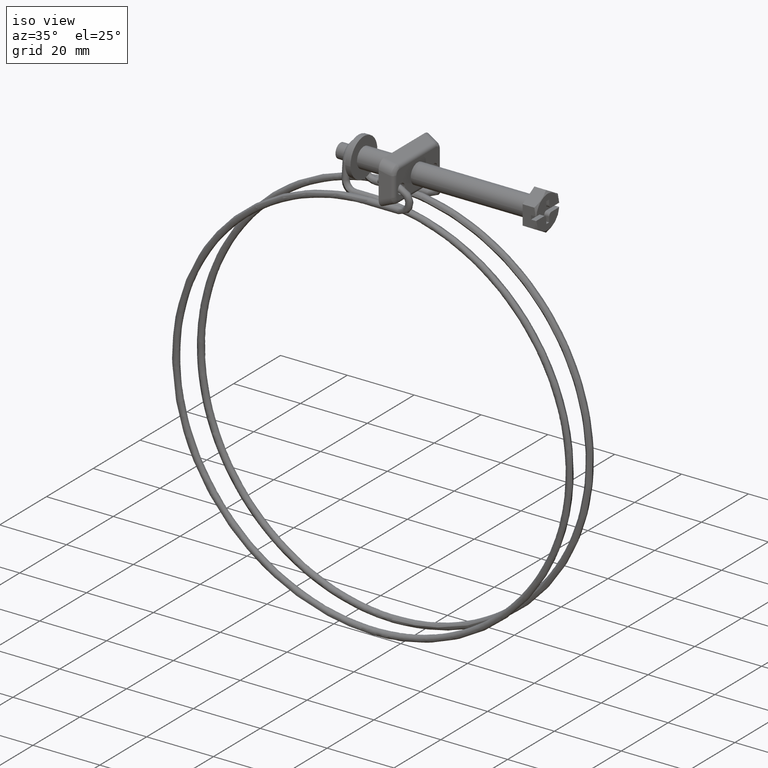
[diagram: clean part render]
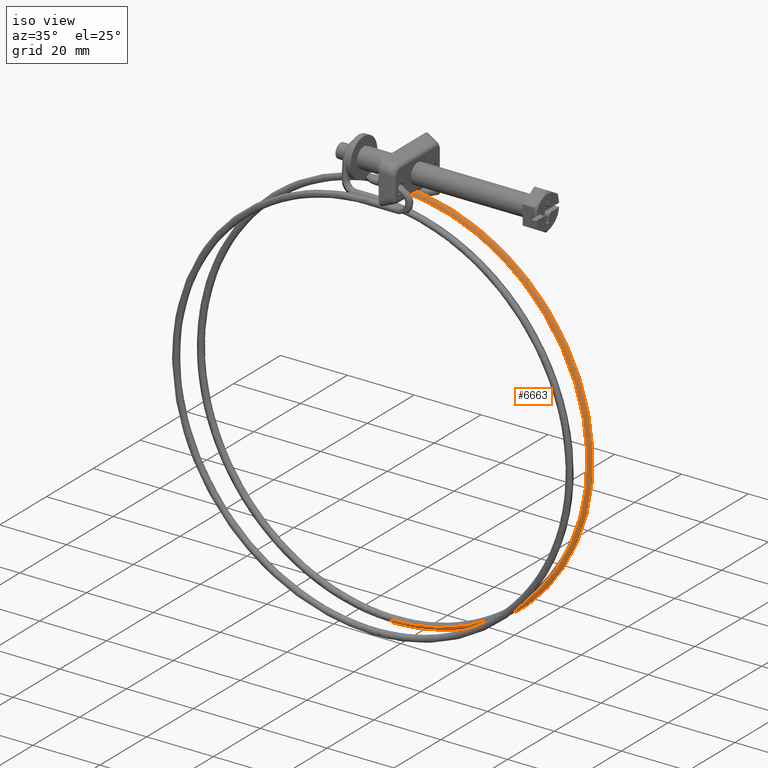
[diagram: same view with one face highlighted and labeled with its STEP entity id]
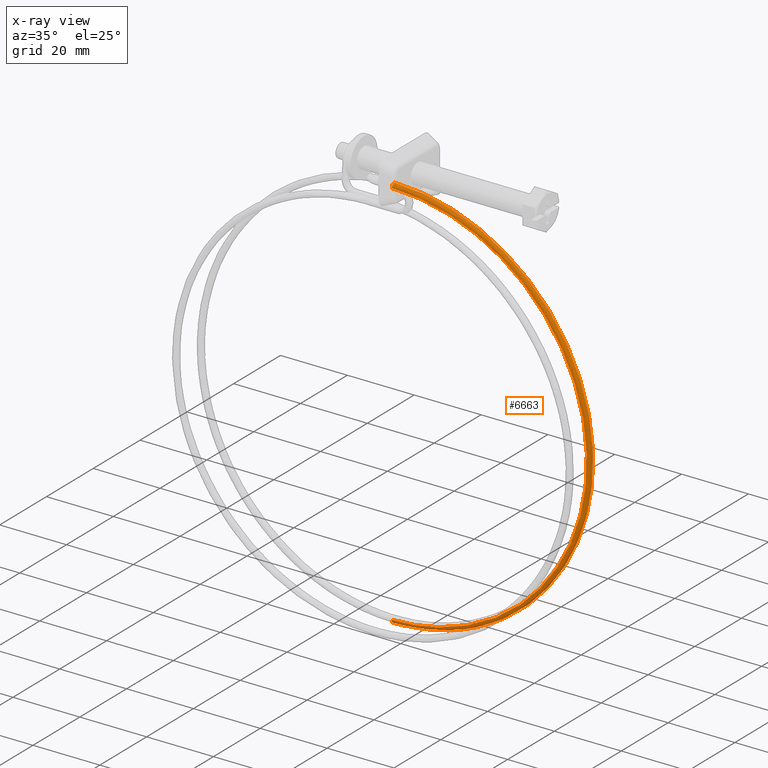
[diagram: x-ray of the same camera — body ghosted, the highlighted face saturated]
A machine part, iso view. The second image highlights one B-rep face of the part: STEP entity #6663.
The next image is the same camera in x-ray: the body ghosted, the highlighted face saturated — about 0% of this face is hidden behind the body in this view.
In plain terms, the highlighted face is a freeform B-spline surface patch.
Its self-contained STEP definition (entity closure, byte-faithful):
#4858=CARTESIAN_POINT('',(-44.950000013302088,3.306690361367748,-7.965465230629268));
#4859=VERTEX_POINT('',#4858);
#4873=CARTESIAN_POINT('',(-44.950015850828407,4.300002000001456,-6.850001000004212));
#4874=VERTEX_POINT('',#4873);
#4875=CARTESIAN_POINT('',(-44.950000013302095,3.306690361367748,-7.965465230629268));
#4876=CARTESIAN_POINT('',(-44.950000418445541,3.300001999853984,-7.907926829144694));
#4877=CARTESIAN_POINT('',(-44.950000874184767,3.300001999858369,-7.850000998769247));
#4878=CARTESIAN_POINT('',(-44.950008741818706,3.300001999934056,-6.850000999422502));
#4879=CARTESIAN_POINT('',(-44.950015850828407,4.300002000001456,-6.850001000004212));
#4887=(BOUNDED_CURVE()B_SPLINE_CURVE(2,(#4875,#4876,#4877,#4878,#4879),.UNSPECIFIED.,.F.,.U.)B_SPLINE_CURVE_WITH_KNOTS((3,2,3),(0.729999999556472,0.750000000000000,1.0),.UNSPECIFIED.)CURVE()GEOMETRIC_REPRESENTATION_ITEM()RATIONAL_B_SPLINE_CURVE((0.956886117317689,0.976568541975298,1.0,0.707106781186548,1.0))REPRESENTATION_ITEM(''));
#4888=EDGE_CURVE('',#4859,#4874,#4887,.T.);
#6572=CARTESIAN_POINT('',(-53.202075575877622,3.310350901406555,-8.583392047614986));
#6573=CARTESIAN_POINT('',(13.827324024132908,3.310350901406555,0.991891690450977));
#6574=CARTESIAN_POINT('',(13.401893164240649,3.310350901406554,-66.716641582584955));
#6575=CARTESIAN_POINT('',(12.981529037221387,3.310350901406555,-133.618789885325130));
#6576=CARTESIAN_POINT('',(-53.242874731254204,3.310350901406554,-124.110767008247040));
#6577=CARTESIAN_POINT('',(-53.204314444186103,3.308510592141385,-8.567719405152657));
#6578=CARTESIAN_POINT('',(13.843270883417688,3.308510592141386,1.010162200456918));
#6579=CARTESIAN_POINT('',(13.417724599998227,3.308510592141385,-66.716741055738510));
#6580=CARTESIAN_POINT('',(12.997246424105644,3.308510592141385,-133.637040561558190));
#6581=CARTESIAN_POINT('',(-53.245124668770075,3.308510592141383,-124.126438065461800));
#6582=CARTESIAN_POINT('',(-53.214665757224921,3.300002000001456,-8.495257604850540));
#6583=CARTESIAN_POINT('',(13.917000513613567,3.300002000001456,1.094635131594764));
#6584=CARTESIAN_POINT('',(13.490920574392415,3.300002000001456,-66.717200965661547));
#6585=CARTESIAN_POINT('',(13.069915098352235,3.300002000001456,-133.721421792085180));
#6586=CARTESIAN_POINT('',(-53.255527159821661,3.300002000001455,-124.198892536438950));
#6587=CARTESIAN_POINT('',(-53.222857417479894,3.300002000001455,-8.437913918372052));
#6588=CARTESIAN_POINT('',(13.975347515489041,3.300002000001455,1.161483998982712));
#6589=CARTESIAN_POINT('',(13.548845260084020,3.300002000001455,-66.717564921985087));
#6590=CARTESIAN_POINT('',(13.127422497498136,3.300002000001455,-133.788198090877530));
#6591=CARTESIAN_POINT('',(-53.263759320532131,3.300002000001456,-124.256230422750830));
#6592=CARTESIAN_POINT('',(-53.364273783590647,3.300002000001455,-7.447963711848500));
#6593=CARTESIAN_POINT('',(14.982618413189721,3.300002000001455,2.315526477597802));
#6594=CARTESIAN_POINT('',(14.548825520940156,3.300002000001455,-66.723848065950648));
#6595=CARTESIAN_POINT('',(14.120198950446824,3.300002000001455,-134.940987784738750));
#6596=CARTESIAN_POINT('',(-53.405874864472835,3.300002000001455,-125.246080498353380));
#6597=CARTESIAN_POINT('',(-53.364273783590669,4.303869812374503,-7.447963711848499));
#6598=CARTESIAN_POINT('',(14.982618413189721,4.303869812374501,2.315526477597800));
#6599=CARTESIAN_POINT('',(14.548825520940145,4.303869812374499,-66.723848065950619));
#6600=CARTESIAN_POINT('',(14.120198950446820,4.303869812374501,-134.940987784738700));
#6601=CARTESIAN_POINT('',(-53.405874864472842,4.303869812374501,-125.246080498353420));
#6602=CARTESIAN_POINT('',(-53.364273783590676,4.307725251323967,-7.447963711848500));
#6603=CARTESIAN_POINT('',(14.982618413189723,4.307725251323967,2.315526477597801));
#6604=CARTESIAN_POINT('',(14.548825520940154,4.307725251323967,-66.723848065950648));
#6605=CARTESIAN_POINT('',(14.120198950446820,4.307725251323964,-134.940987784738700));
#6606=CARTESIAN_POINT('',(-53.405874864472842,4.307725251323965,-125.246080498353420));
#6614=(BOUNDED_SURFACE()B_SPLINE_SURFACE(2,2,((#6572,#6577,#6582,#6587,#6592,#6597,#6602),(#6573,#6578,#6583,#6588,#6593,#6598,#6603),(#6574,#6579,#6584,#6589,#6594,#6599,#6604),(#6575,#6580,#6585,#6590,#6595,#6600,#6605),(#6576,#6581,#6586,#6591,#6596,#6601,#6606)),.UNSPECIFIED.,.F.,.F.,.U.)B_SPLINE_SURFACE_WITH_KNOTS((3,2,3),(3,1,2,1,3),(0.0,109.077038899990400,217.306394061121490),(0.0,0.035153045526875,0.167701385486266,1.824555634978648,1.833633025995563),.UNSPECIFIED.)GEOMETRIC_REPRESENTATION_ITEM()RATIONAL_B_SPLINE_SURFACE(((0.937718386751459,0.942890210964483,0.967562954762809,0.990778335221501,0.700586079487842,0.992368208667631,0.993958082113760),(0.615010245064608,0.618402228117966,0.634584048186986,0.649810044634204,0.459485089043979,0.650852776089128,0.651895507544051),(0.946446196304666,0.951666157247663,0.976568542494924,1.0,0.707106781186548,1.001604671185886,1.003209342371771),(0.617585973826343,0.620992162867942,0.637241754132164,0.652531518682906,0.461409461798639,0.653578617208818,0.654625715734731),(0.932742091252656,0.937886469565167,0.962428279742438,0.985520460533819,0.696868200641553,0.987101896819938,0.988683333106057)))REPRESENTATION_ITEM('')SURFACE());
#6615=ORIENTED_EDGE('',*,*,#4888,.F.);
#6616=CARTESIAN_POINT('',(-44.949999999844700,3.306810287594325,-124.734551136604690));
#6617=VERTEX_POINT('',#6616);
#6618=CARTESIAN_POINT('',(-44.950000013302088,3.306690361367748,-7.965465230629268));
#6619=CARTESIAN_POINT('',(13.802533939039542,3.306690361367740,-7.965465217290014));
#6620=CARTESIAN_POINT('',(13.433383309898925,3.306750701237918,-66.716846672353967));
#6621=CARTESIAN_POINT('',(13.068842569344646,3.306810287594331,-124.734551136450350));
#6622=CARTESIAN_POINT('',(-44.949999999844700,3.306810287594324,-124.734551136604760));
#6630=(BOUNDED_CURVE()B_SPLINE_CURVE(2,(#6618,#6619,#6620,#6621,#6622),.UNSPECIFIED.,.F.,.U.)B_SPLINE_CURVE_WITH_KNOTS((3,2,3),(-3.795101889729139,-2.0,-0.220236089797879),.UNSPECIFIED.)CURVE()GEOMETRIC_REPRESENTATION_ITEM()RATIONAL_B_SPLINE_CURVE((0.894438311824392,0.652111192332554,0.956886118190660,0.654715296088394,0.890337197879846))REPRESENTATION_ITEM(''));
#6631=EDGE_CURVE('',#4859,#6617,#6630,.T.);
#6632=ORIENTED_EDGE('',*,*,#6631,.T.);
#6633=CARTESIAN_POINT('',(-44.949999999970331,4.300002000001456,-125.850000999999910));
#6634=VERTEX_POINT('',#6633);
#6635=CARTESIAN_POINT('',(-44.949999999844700,3.306810287594325,-124.734551136604690));
#6636=CARTESIAN_POINT('',(-44.949999999846852,3.302226016640508,-124.772837989488490));
#6637=CARTESIAN_POINT('',(-44.949999999849140,3.299886312455536,-124.811395181184100));
#6638=CARTESIAN_POINT('',(-44.949999999868012,3.299904328780814,-125.111788687840900));
#6639=CARTESIAN_POINT('',(-44.949999999890380,3.407698784944419,-125.371978517475300));
#6640=CARTESIAN_POINT('',(-44.949999999934349,3.777981005018821,-125.742223790501200));
#6641=CARTESIAN_POINT('',(-44.949999999955693,4.038188632960975,-125.849999325437690));
#6642=CARTESIAN_POINT('',(-44.949999999970331,4.300002000001456,-125.850000999999910));
#6643=B_SPLINE_CURVE_WITH_KNOTS('',3,(#6635,#6636,#6637,#6638,#6639,#6640,#6641,#6642),.UNSPECIFIED.,.F.,.U.,(4,2,2,4),(0.731573696074720,0.749999999999993,0.874999999999997,1.0),.UNSPECIFIED.);
#6644=EDGE_CURVE('',#6617,#6634,#6643,.T.);
#6645=ORIENTED_EDGE('',*,*,#6644,.T.);
#6646=CARTESIAN_POINT('',(-44.950015850828407,4.300002000001456,-6.850001000004212));
#6647=CARTESIAN_POINT('',(14.925029047983712,4.300002000001455,-6.849985049261478));
#6648=CARTESIAN_POINT('',(14.548825520940150,4.300002000001455,-66.723848065950648));
#6649=CARTESIAN_POINT('',(14.177320056726435,4.300002000001455,-125.850000999940820));
#6650=CARTESIAN_POINT('',(-44.949999999970338,4.300002000001456,-125.850000999999890));
#6658=(BOUNDED_CURVE()B_SPLINE_CURVE(2,(#6646,#6647,#6648,#6649,#6650),.UNSPECIFIED.,.F.,.U.)B_SPLINE_CURVE_WITH_KNOTS((3,2,3),(-3.795102215358689,-2.0,-0.220236089795856),.UNSPECIFIED.)CURVE()GEOMETRIC_REPRESENTATION_ITEM()RATIONAL_B_SPLINE_CURVE((0.934738609680562,0.681492943256156,1.0,0.684214436432653,0.930452622265947))REPRESENTATION_ITEM(''));
#6659=EDGE_CURVE('',#4874,#6634,#6658,.T.);
#6660=ORIENTED_EDGE('',*,*,#6659,.F.);
#6661=EDGE_LOOP('',(#6615,#6632,#6645,#6660));
#6662=FACE_OUTER_BOUND('',#6661,.T.);
#6663=ADVANCED_FACE('',(#6662),#6614,.T.);